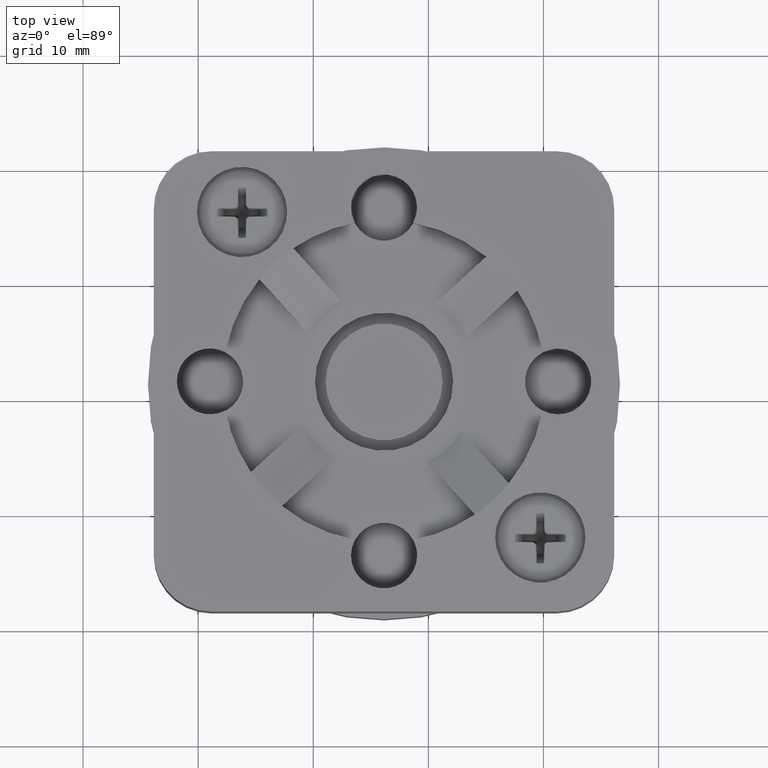
[diagram: clean part render]
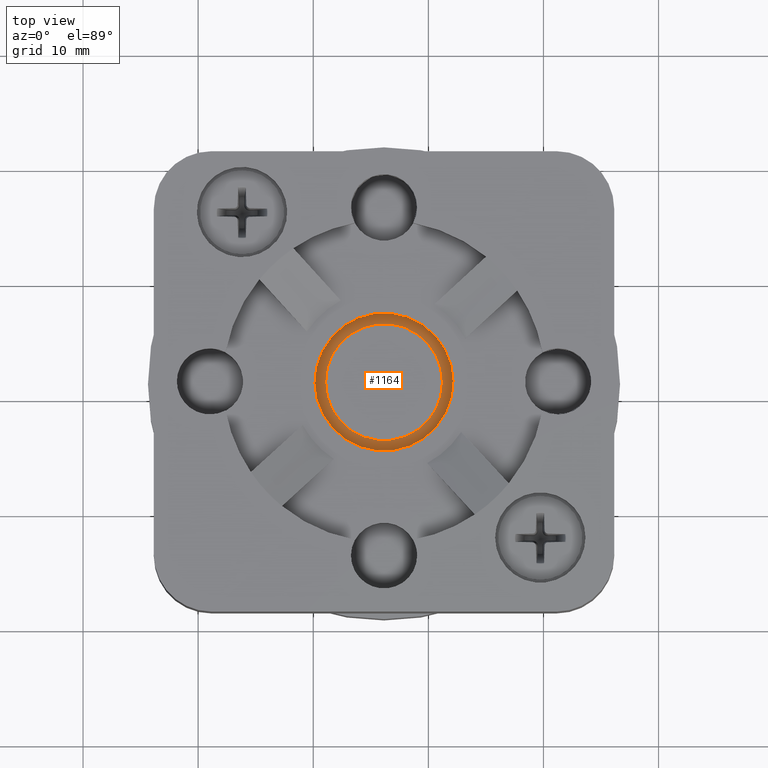
[diagram: same view with one face highlighted and labeled with its STEP entity id]
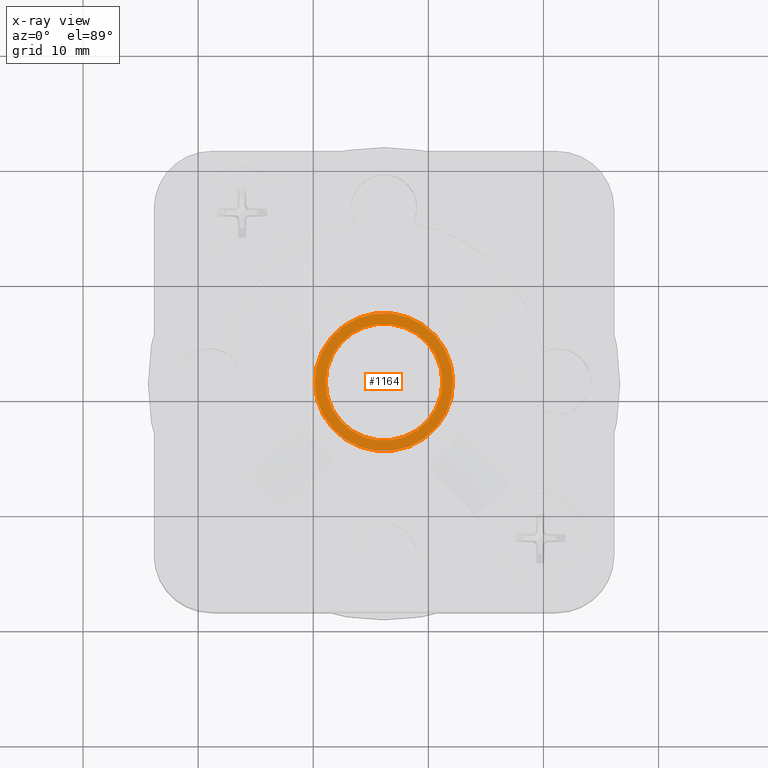
[diagram: x-ray of the same camera — body ghosted, the highlighted face saturated]
A machine part, top view. The second image highlights one B-rep face of the part: STEP entity #1164.
The next image is the same camera in x-ray: the body ghosted, the highlighted face saturated — about 0% of this face is hidden behind the body in this view.
In plain terms, the highlighted planar face has unit normal (0, 0, -1).
Its self-contained STEP definition (entity closure, byte-faithful):
#1112=CARTESIAN_POINT('',(1.221516138648897,-8.713519538058748,5.500000000000002));
#1113=VERTEX_POINT('',#1112);
#1114=CARTESIAN_POINT('',(-3.853483861351104,-8.713519538058749,5.500000000000002));
#1115=DIRECTION('',(0.0,0.0,-1.0));
#1116=DIRECTION('',(-1.0,0.0,0.0));
#1117=AXIS2_PLACEMENT_3D('',#1114,#1115,#1116);
#1118=CIRCLE('',#1117,5.075000000000001);
#1119=EDGE_CURVE('',#1113,#1113,#1118,.T.);
#1138=CARTESIAN_POINT('',(0.570508789495641,-4.660336958251369,5.500000000000000));
#1139=VERTEX_POINT('',#1138);
#1140=CARTESIAN_POINT('',(-3.853483861351104,-8.713519538058749,5.500000000000002));
#1141=DIRECTION('',(1.087306E-016,9.961705E-017,1.000000000000000));
#1142=DIRECTION('',(-0.737332108474458,-0.675530429967896,1.474649E-016));
#1143=AXIS2_PLACEMENT_3D('',#1140,#1141,#1142);
#1144=CIRCLE('',#1143,6.000000000000001);
#1145=EDGE_CURVE('',#1139,#1139,#1144,.T.);
#1153=CARTESIAN_POINT('',(-3.853483861351104,-8.713519538058749,5.500000000000002));
#1154=DIRECTION('',(0.0,0.0,-1.0));
#1155=DIRECTION('',(-1.0,0.0,0.0));
#1156=AXIS2_PLACEMENT_3D('',#1153,#1154,#1155);
#1157=PLANE('',#1156);
#1158=ORIENTED_EDGE('',*,*,#1145,.T.);
#1159=EDGE_LOOP('',(#1158));
#1160=FACE_OUTER_BOUND('',#1159,.T.);
#1161=ORIENTED_EDGE('',*,*,#1119,.T.);
#1162=EDGE_LOOP('',(#1161));
#1163=FACE_BOUND('',#1162,.T.);
#1164=ADVANCED_FACE('',(#1160,#1163),#1157,.F.);